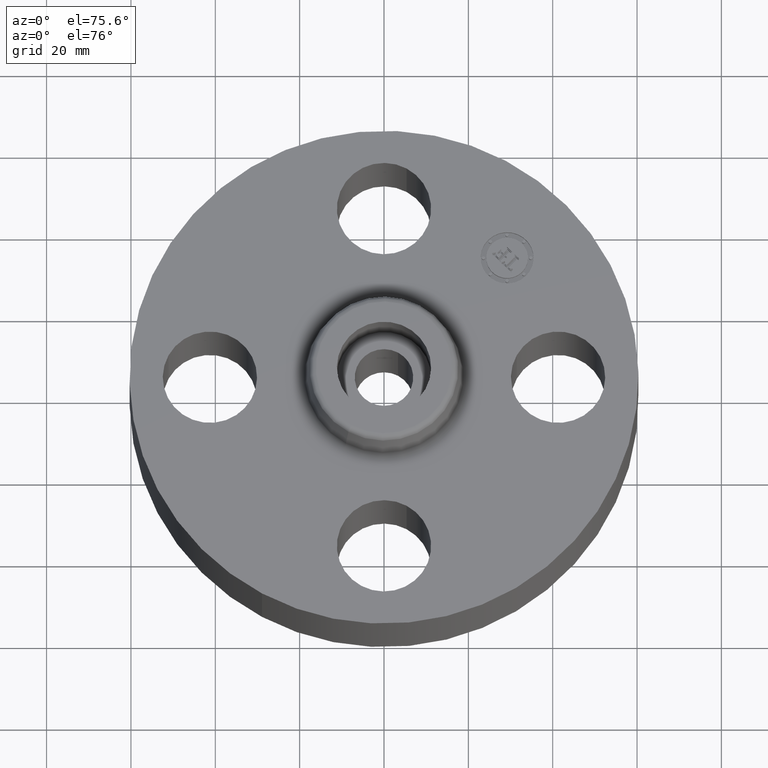
[diagram: clean part render]
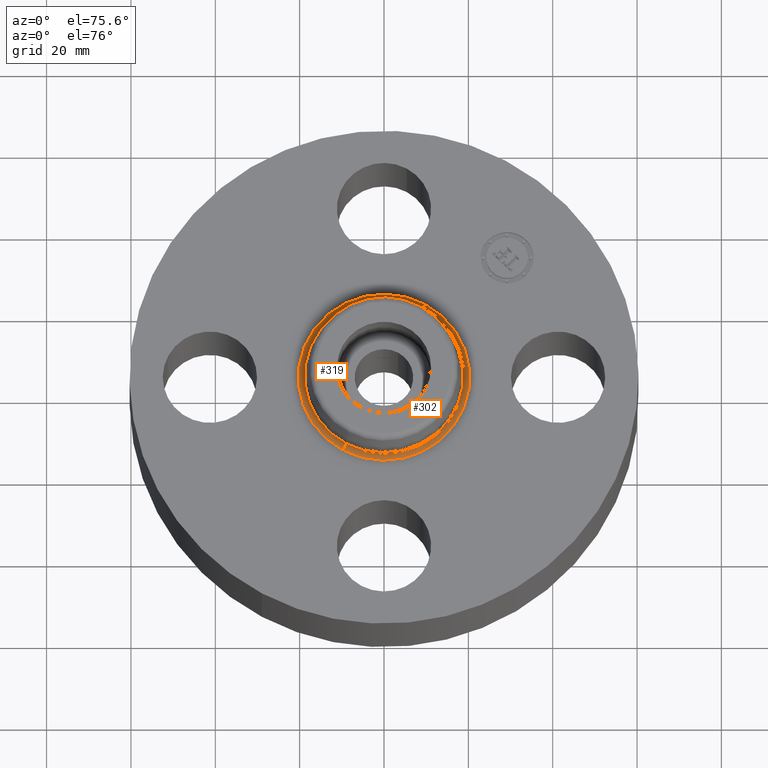
[diagram: same view with one multi-face feature highlighted, each face labeled with its STEP entity id]
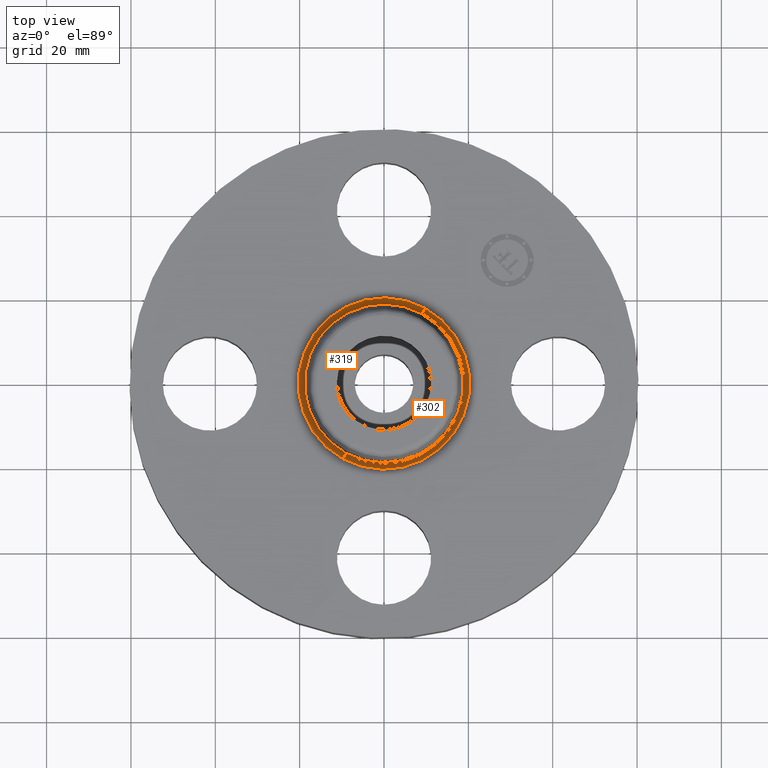
[diagram: same view with one multi-face feature highlighted, each face labeled with its STEP entity id]
A machine part, auxiliary view. The highlighted faces form ONE feature: a constant-radius fillet chain: 2 tangent blend faces with common blend radius 1.524 mm. The faces share edges in the B-rep.
A second angle (top view) of the same feature is appended — it is thin or edge-on in the first view.
Their STEP definitions:
[1] entity #302 (Torus):
#266=AXIS2_PLACEMENT_3D('Torus Axis2P3D',#263,#264,#265) ;
#270=AXIS2_PLACEMENT_3D('Circle Axis2P3D',#268,#269,$) ;
#279=AXIS2_PLACEMENT_3D('Circle Axis2P3D',#277,#278,$) ;
#286=AXIS2_PLACEMENT_3D('Circle Axis2P3D',#284,#285,$) ;
#293=AXIS2_PLACEMENT_3D('Circle Axis2P3D',#291,#292,$) ;
#263=CARTESIAN_POINT('Axis2P3D Location',(0.,0.,0.940000000004)) ;
#268=CARTESIAN_POINT('Axis2P3D Location',(0.,0.,0.880000000004)) ;
#272=CARTESIAN_POINT('Vertex',(0.383706301512,0.702369673661,0.880000000004)) ;
#274=CARTESIAN_POINT('Vertex',(-0.383706301512,-0.702369673661,0.880000000004)) ;
#277=CARTESIAN_POINT('Axis2P3D Location',(0.383706301512,0.702369673661,0.940000000004)) ;
#281=CARTESIAN_POINT('Vertex',(0.355377782267,0.650514667009,0.929581109344)) ;
#284=CARTESIAN_POINT('Axis2P3D Location',(0.,0.,0.929581109344)) ;
#288=CARTESIAN_POINT('Vertex',(-0.355377782267,-0.650514667009,0.929581109344)) ;
#291=CARTESIAN_POINT('Axis2P3D Location',(-0.383706301512,-0.702369673661,0.940000000004)) ;
#264=DIRECTION('Axis2P3D Direction',(0.,0.,-0.0393700787402)) ;
#265=DIRECTION('Axis2P3D XDirection',(-0.0188750212049,-0.0345504945626,0.)) ;
#269=DIRECTION('Axis2P3D Direction',(0.,0.,-0.0393700787402)) ;
#278=DIRECTION('Axis2P3D Direction',(-0.0345504945626,0.0188750212049,0.)) ;
#285=DIRECTION('Axis2P3D Direction',(0.,0.,-0.0393700787402)) ;
#292=DIRECTION('Axis2P3D Direction',(0.0345504945626,-0.0188750212049,0.)) ;
#297=ORIENTED_EDGE('',*,*,#276,.F.) ;
#298=ORIENTED_EDGE('',*,*,#283,.T.) ;
#299=ORIENTED_EDGE('',*,*,#290,.T.) ;
#300=ORIENTED_EDGE('',*,*,#295,.F.) ;
#302=ADVANCED_FACE('PartBody',(#301),#267,.F.) ;
#271=CIRCLE('generated circle',#270,0.800345977874) ;
#280=CIRCLE('generated circle',#279,0.0600000000002) ;
#287=CIRCLE('generated circle',#286,0.741257512693) ;
#294=CIRCLE('generated circle',#293,0.0600000000002) ;
#267=TOROIDAL_SURFACE('homeo Torus',#266,0.800345977874,0.0600000000002) ;
#276=EDGE_CURVE('',#273,#275,#271,.T.) ;
#283=EDGE_CURVE('',#273,#282,#280,.T.) ;
#290=EDGE_CURVE('',#282,#289,#287,.T.) ;
#295=EDGE_CURVE('',#275,#289,#294,.T.) ;
#296=EDGE_LOOP('',(#297,#298,#299,#300)) ;
#301=FACE_OUTER_BOUND('',#296,.T.) ;
#273=VERTEX_POINT('',#272) ;
#275=VERTEX_POINT('',#274) ;
#282=VERTEX_POINT('',#281) ;
#289=VERTEX_POINT('',#288) ;
[2] entity #319 (Torus):
#266=AXIS2_PLACEMENT_3D('Torus Axis2P3D',#263,#264,#265) ;
#279=AXIS2_PLACEMENT_3D('Circle Axis2P3D',#277,#278,$) ;
#293=AXIS2_PLACEMENT_3D('Circle Axis2P3D',#291,#292,$) ;
#305=AXIS2_PLACEMENT_3D('Circle Axis2P3D',#303,#304,$) ;
#310=AXIS2_PLACEMENT_3D('Circle Axis2P3D',#308,#309,$) ;
#263=CARTESIAN_POINT('Axis2P3D Location',(0.,0.,0.940000000004)) ;
#272=CARTESIAN_POINT('Vertex',(0.383706301512,0.702369673661,0.880000000004)) ;
#274=CARTESIAN_POINT('Vertex',(-0.383706301512,-0.702369673661,0.880000000004)) ;
#277=CARTESIAN_POINT('Axis2P3D Location',(0.383706301512,0.702369673661,0.940000000004)) ;
#281=CARTESIAN_POINT('Vertex',(0.355377782267,0.650514667009,0.929581109344)) ;
#288=CARTESIAN_POINT('Vertex',(-0.355377782267,-0.650514667009,0.929581109344)) ;
#291=CARTESIAN_POINT('Axis2P3D Location',(-0.383706301512,-0.702369673661,0.940000000004)) ;
#303=CARTESIAN_POINT('Axis2P3D Location',(0.,0.,0.880000000004)) ;
#308=CARTESIAN_POINT('Axis2P3D Location',(0.,0.,0.929581109344)) ;
#264=DIRECTION('Axis2P3D Direction',(0.,0.,-0.0393700787402)) ;
#265=DIRECTION('Axis2P3D XDirection',(-0.0188750212049,-0.0345504945626,0.)) ;
#278=DIRECTION('Axis2P3D Direction',(-0.0345504945626,0.0188750212049,0.)) ;
#292=DIRECTION('Axis2P3D Direction',(0.0345504945626,-0.0188750212049,0.)) ;
#304=DIRECTION('Axis2P3D Direction',(0.,0.,-0.0393700787402)) ;
#309=DIRECTION('Axis2P3D Direction',(0.,0.,-0.0393700787402)) ;
#314=ORIENTED_EDGE('',*,*,#307,.F.) ;
#315=ORIENTED_EDGE('',*,*,#295,.T.) ;
#316=ORIENTED_EDGE('',*,*,#312,.T.) ;
#317=ORIENTED_EDGE('',*,*,#283,.F.) ;
#319=ADVANCED_FACE('PartBody',(#318),#267,.F.) ;
#280=CIRCLE('generated circle',#279,0.0600000000002) ;
#294=CIRCLE('generated circle',#293,0.0600000000002) ;
#306=CIRCLE('generated circle',#305,0.800345977874) ;
#311=CIRCLE('generated circle',#310,0.741257512693) ;
#267=TOROIDAL_SURFACE('homeo Torus',#266,0.800345977874,0.0600000000002) ;
#283=EDGE_CURVE('',#273,#282,#280,.T.) ;
#295=EDGE_CURVE('',#275,#289,#294,.T.) ;
#307=EDGE_CURVE('',#275,#273,#306,.T.) ;
#312=EDGE_CURVE('',#289,#282,#311,.T.) ;
#313=EDGE_LOOP('',(#314,#315,#316,#317)) ;
#318=FACE_OUTER_BOUND('',#313,.T.) ;
#273=VERTEX_POINT('',#272) ;
#275=VERTEX_POINT('',#274) ;
#282=VERTEX_POINT('',#281) ;
#289=VERTEX_POINT('',#288) ;